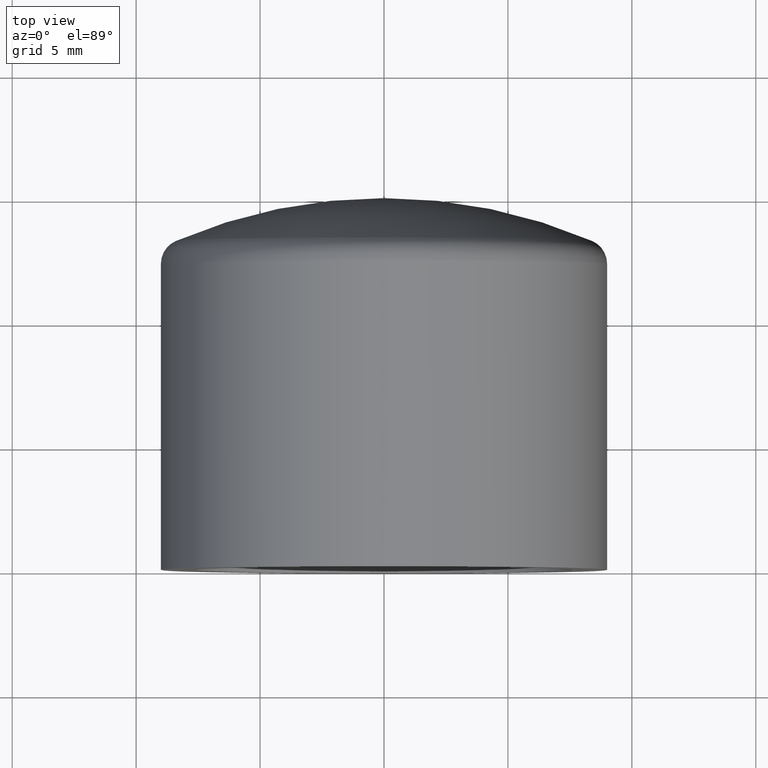
[diagram: clean part render]
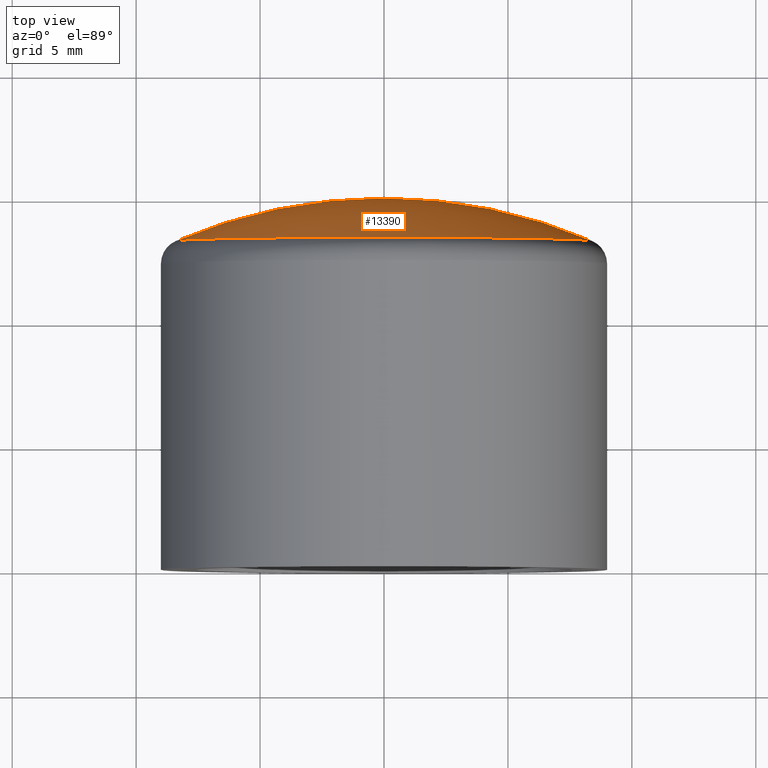
[diagram: same view with one face highlighted and labeled with its STEP entity id]
A machine part, top view. The second image highlights one B-rep face of the part: STEP entity #13390.
In plain terms, the highlighted spherical surface has radius 21.25 mm.
Its self-contained STEP definition (entity closure, byte-faithful):
#261 = AXIS2_PLACEMENT_3D ( 'NONE', #4546, #4722, #355 ) ;
#355 = DIRECTION ( 'NONE',  ( 1.000000000000000000, 0.000000000000000000, 0.000000000000000000 ) ) ;
#582 = CIRCLE ( 'NONE', #11621, 8.395061728395059930 ) ;
#1620 = EDGE_CURVE ( 'NONE', #8010, #13342, #2033, .T. ) ;
#2033 = CIRCLE ( 'NONE', #9140, 21.25000000000000355 ) ;
#2422 = DIRECTION ( 'NONE',  ( 1.000000000000000000, 0.000000000000000000, -1.224646799147353207E-16 ) ) ;
#2483 = ORIENTED_EDGE ( 'NONE', *, *, #7266, .T. ) ;
#2599 = DIRECTION ( 'NONE',  ( 1.224646799147353207E-16, -1.906049502185224824E-33, 1.000000000000000000 ) ) ;
#3485 = CARTESIAN_POINT ( 'NONE',  ( 8.395061728395061706, 13.27140974869480061, 0.000000000000000000 ) ) ;
#3954 = AXIS2_PLACEMENT_3D ( 'NONE', #6901, #2599, #2422 ) ;
#4367 = CARTESIAN_POINT ( 'NONE',  ( -8.395061728395061706, 13.27140974869480061, 1.028098547432346053E-15 ) ) ;
#4546 = CARTESIAN_POINT ( 'NONE',  ( 0.000000000000000000, -6.250000000000007105, 0.000000000000000000 ) ) ;
#4722 = DIRECTION ( 'NONE',  ( 0.000000000000000000, 0.000000000000000000, 1.000000000000000000 ) ) ;
#5053 = CARTESIAN_POINT ( 'NONE',  ( 3.038326916737114976E-16, 13.27140974869480061, 0.000000000000000000 ) ) ;
#6174 = EDGE_LOOP ( 'NONE', ( #7254, #2483, #10526 ) ) ;
#6701 = CARTESIAN_POINT ( 'NONE',  ( 1.631923824635837156E-15, 14.99999999999999822, 0.000000000000000000 ) ) ;
#6901 = CARTESIAN_POINT ( 'NONE',  ( 0.000000000000000000, -6.250000000000007105, 0.000000000000000000 ) ) ;
#6932 = SPHERICAL_SURFACE ( 'NONE', #261, 21.25000000000000355 ) ;
#7082 = DIRECTION ( 'NONE',  ( -1.000000000000000000, 0.000000000000000000, 0.000000000000000000 ) ) ;
#7141 = DIRECTION ( 'NONE',  ( 1.000000000000000000, 0.000000000000000000, 0.000000000000000000 ) ) ;
#7173 = CARTESIAN_POINT ( 'NONE',  ( 0.000000000000000000, -6.250000000000007105, 0.000000000000000000 ) ) ;
#7254 = ORIENTED_EDGE ( 'NONE', *, *, #1620, .F. ) ;
#7266 = EDGE_CURVE ( 'NONE', #8010, #12621, #10829, .T. ) ;
#7950 = FACE_OUTER_BOUND ( 'NONE', #6174, .T. ) ;
#8010 = VERTEX_POINT ( 'NONE', #6701 ) ;
#8232 = DIRECTION ( 'NONE',  ( 1.556407531961289693E-17, 1.000000000000000000, 0.000000000000000000 ) ) ;
#9140 = AXIS2_PLACEMENT_3D ( 'NONE', #7173, #12492, #7082 ) ;
#10381 = EDGE_CURVE ( 'NONE', #12621, #13342, #582, .T. ) ;
#10526 = ORIENTED_EDGE ( 'NONE', *, *, #10381, .T. ) ;
#10829 = CIRCLE ( 'NONE', #3954, 21.25000000000000355 ) ;
#11621 = AXIS2_PLACEMENT_3D ( 'NONE', #5053, #8232, #7141 ) ;
#12492 = DIRECTION ( 'NONE',  ( 0.000000000000000000, 0.000000000000000000, -1.000000000000000000 ) ) ;
#12621 = VERTEX_POINT ( 'NONE', #4367 ) ;
#13342 = VERTEX_POINT ( 'NONE', #3485 ) ;
#13390 = ADVANCED_FACE ( 'NONE', ( #7950 ), #6932, .T. ) ;